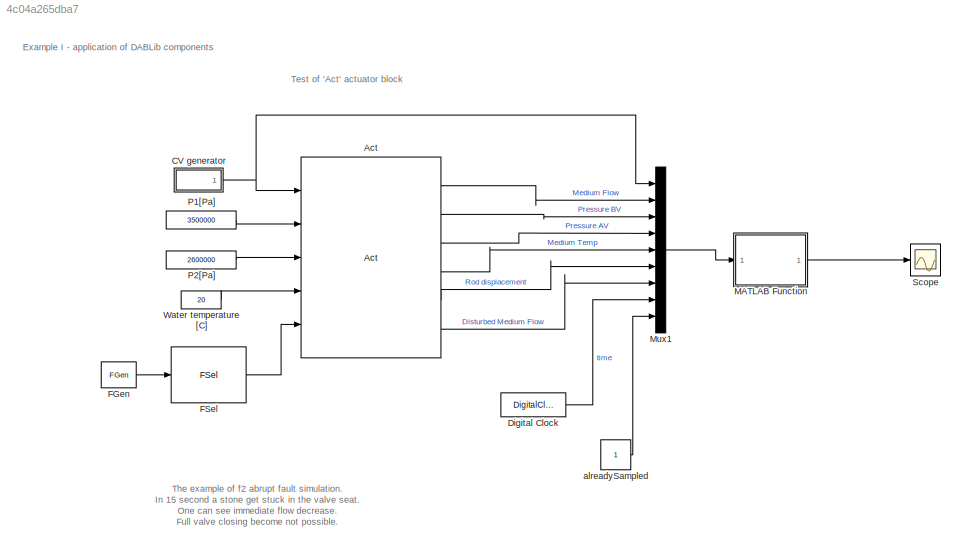
MODEL slx_4c04a265dba7
KIND model
CONFIG AbsTol = 1e-6
CONFIG EnableMultiTasking = off
CONFIG FixedStep = 0.0025
CONFIG MaxStep = auto
CONFIG MinStep = auto
CONFIG RelTol = 1e-3
CONFIG SampleTimeConstraint = Unconstrained
CONFIG Solver = ode4
CONFIG SolverName = ode4
CONFIG StartTime = 0.0
CONFIG StopTime = 50
BLOCK [Reference] Act  REF=DABLib/Act
  Ports = [5, 6]
  SourceBlock = DABLib/Act
  SourceType = Actuator
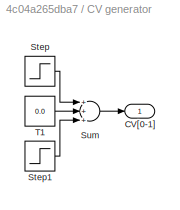
BLOCK [SubSystem] CV generator
  Ports = [0, 1]
  RequestExecContextInheritance = off
  Variant = off
BLOCK [Outport] CV generator/CV[0-1]
  IconDisplay = Port number
  InitialOutput = 0
BLOCK [Step] CV generator/Step
  After = 0.5
  Time = 0
BLOCK [Step] CV generator/Step1
  After = 0.5
  Time = 25
BLOCK [Sum] CV generator/Sum
  Inputs = +++
  Ports = [3, 1]
BLOCK [Constant] CV generator/T1
  Value = 0.0
BLOCK [DigitalClock] Digital Clock
BLOCK [Reference] FGen  REF=DABLib/FGen
  Ports = [0, 1]
  SourceBlock = DABLib/FGen
  SourceType = Fault generator
BLOCK [Reference] FSel  REF=DABLib/FSel
  Ports = [1, 1]
  SourceBlock = DABLib/FSel
  SourceType = Fault vector element attribution
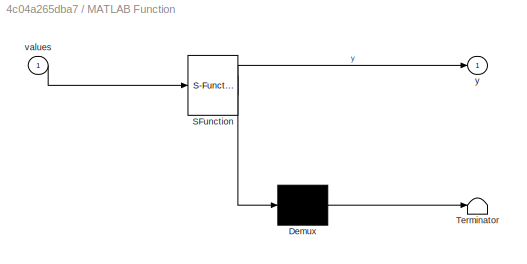
BLOCK [SubSystem] MATLAB Function
  ErrorFcn = Stateflow.Translate.translate
  PermitHierarchicalResolution = ExplicitOnly
  Ports = [1, 1]
  RequestExecContextInheritance = off
  SFBlockType = MATLAB Function
  TreatAsAtomicUnit = on
  Variant = off
BLOCK [Demux] MATLAB Function/ Demux 
  Outputs = 1
  Ports = [1, 1]
BLOCK [S-Function] MATLAB Function/ SFunction 
  EnableBusSupport = on
  FunctionName = sf_sfun
  PortCounts = [1 2]
  Ports = [1, 2]
  SFcnIsStateOwnerBlock = off
  SFunctionDeploymentMode = off
  Tag = Stateflow S-Function ActuatorTest_Example_ToFile 2
BLOCK [Terminator] MATLAB Function/ Terminator 
BLOCK [Inport] MATLAB Function/values
  IconDisplay = Port number
BLOCK [Outport] MATLAB Function/y
  IconDisplay = Port number
BLOCK [Mux] Mux1
  Inputs = 9
  Ports = [9, 1]
BLOCK [Constant] P1[Pa] 
  Value = 3500000
BLOCK [Constant] P2[Pa] 
  Value = 2600000
BLOCK [Scope] Scope
  NumInputPorts = 1
  Ports = [1]
  ScopeSpecificationString = Simulink.scopes.TimeScopeBlockCfg('CurrentConfiguration', extmgr.ConfigurationSet(extmgr.Configuration('Core','General UI',true),extmgr.Configuration('Core','Source UI',true),extmgr.Configuration('Sources','WiredSimulink',true),extmgr.Configuration('Visuals','Time Domain',true,'SerializedDisplays',{struct('MinYLimReal','-0.125','MaxYLimReal','1.125','YLabelReal','','MinYLimMag','0.00000','MaxYLimM...<+1379ch>
BLOCK [Constant] Water temperature [C]
  Value = 20
BLOCK [Constant] alreadySampled
  VectorParams1D = off
ANNOTATION (root): Example I - application of DABLib components
ANNOTATION (root): Test of 'Act' actuator block
ANNOTATION (root): The example of f2 abrupt fault simulation. In 15 second a stone get stuck in the valve seat. One can see immediate flow decrease. Full valve closing become not possible.
LINE Act:1 -> Mux1:2
LINE Act:2 -> Mux1:3
LINE Act:3 -> Mux1:4
LINE Act:4 -> Mux1:5
LINE Act:5 -> Mux1:6
LINE Act:6 -> Mux1:7
LINE CV generator/Step1:1 -> CV generator/Sum:3
LINE CV generator/Step:1 -> CV generator/Sum:1
LINE CV generator/Sum:1 -> CV generator/CV[0-1]:1
LINE CV generator/T1:1 -> CV generator/Sum:2
NET CV generator:1 -> Act:1, Mux1:1
LINE Digital Clock:1 -> Mux1:8
LINE FGen:1 -> FSel:1
LINE FSel:1 -> Act:5
LINE MATLAB Function:1 -> Scope:1
LINE Mux1:1 -> MATLAB Function:1
LINE P1[Pa] :1 -> Act:2
LINE P2[Pa] :1 -> Act:3
LINE Water temperature [C]:1 -> Act:4
LINE alreadySampled:1 -> Mux1:9
note: NET lines group one-source signal fan-out (src -> all destinations, sorted); 1:1 wires keep LINE
CHART MATLAB Function states=1 transitions=1
  STATE_LABEL 'eML_blk_kernel()'
  STATE_LABEL "SCRIPT:\nfunction y = saveToDB(values)\n\ncoder.extrinsic('set_param');\ncoder.extrinsic('evalin');\ncoder.extrinsic('disp');\n\nalreadySampled = values(9);\ntime = values(8);\n\n%Write samples to the database\nif mod(time,5) == 0 && alreadySampled == 0\n    set_param('ActuatorTest_Example_ToFile/alreadySampled', 'Value', '1');\n    alreadySampled = 1;\n    conn = evalin('base', 'dbconn');\n    writeToDB(conn, v...<+1978ch>"
